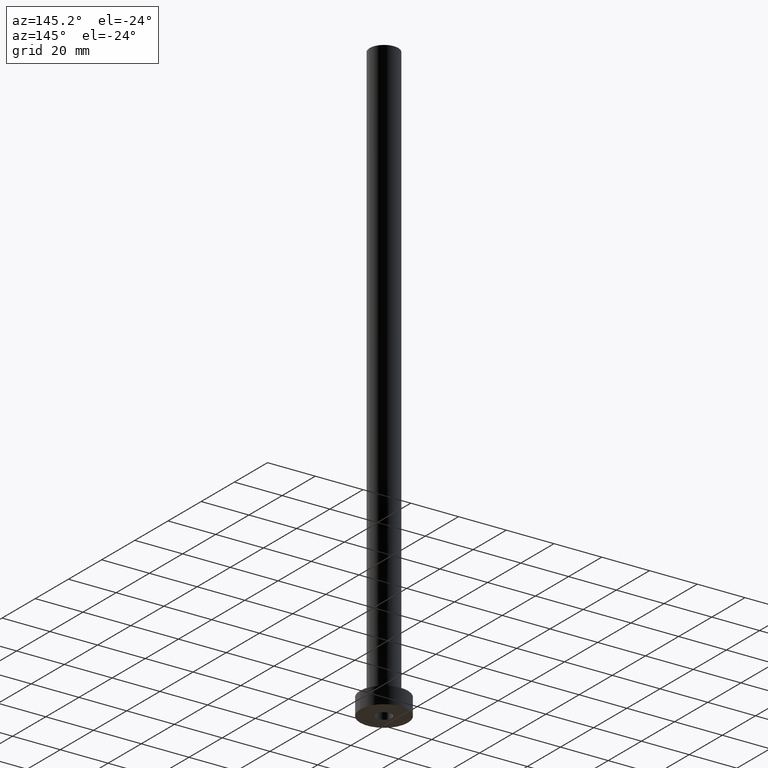
[diagram: clean part render]
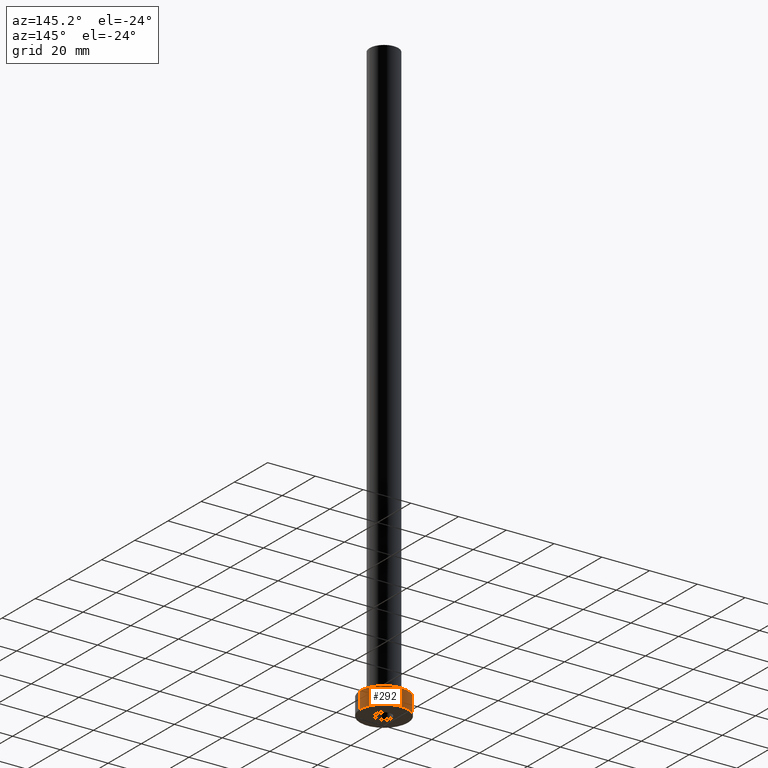
[diagram: same view with one face highlighted and labeled with its STEP entity id]
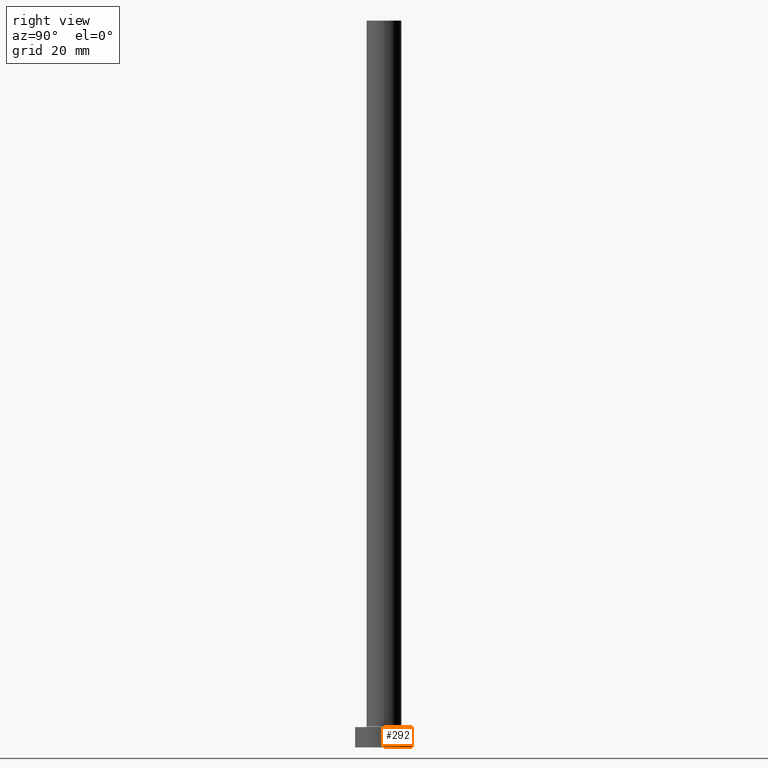
[diagram: same view with one face highlighted and labeled with its STEP entity id]
A machine part, auxiliary view. The second image highlights one B-rep face of the part: STEP entity #292.
A second angle (right view) of the same face is appended — the face is thin or edge-on in the first view.
In plain terms, the highlighted cylindrical surface (edge-blend (fillet) strip) has radius 10 mm, axis along (-0, -0, -1).
Its self-contained STEP definition (entity closure, byte-faithful):
#8 = CARTESIAN_POINT ( 'NONE',  ( -10.00000000000000000, 0.000000000000000000, 0.000000000000000000 ) ) ;
#19 = CARTESIAN_POINT ( 'NONE',  ( -10.00000000000000000, 0.000000000000000000, 7.000000000000000000 ) ) ;
#35 = CARTESIAN_POINT ( 'NONE',  ( 0.000000000000000000, 0.000000000000000000, 0.000000000000000000 ) ) ;
#44 = DIRECTION ( 'NONE',  ( -0.000000000000000000, -0.000000000000000000, -1.000000000000000000 ) ) ;
#67 = EDGE_LOOP ( 'NONE', ( #178, #98, #455, #127 ) ) ;
#79 = DIRECTION ( 'NONE',  ( -0.000000000000000000, -0.000000000000000000, -1.000000000000000000 ) ) ;
#98 = ORIENTED_EDGE ( 'NONE', *, *, #195, .T. ) ;
#107 = FACE_OUTER_BOUND ( 'NONE', #67, .T. ) ;
#111 = DIRECTION ( 'NONE',  ( 1.000000000000000000, 0.000000000000000000, 0.000000000000000000 ) ) ;
#122 = DIRECTION ( 'NONE',  ( 0.000000000000000000, 0.000000000000000000, 1.000000000000000000 ) ) ;
#127 = ORIENTED_EDGE ( 'NONE', *, *, #153, .F. ) ;
#143 = LINE ( 'NONE', #244, #375 ) ;
#145 = CYLINDRICAL_SURFACE ( 'NONE', #253, 10.00000000000000000 ) ;
#153 = EDGE_CURVE ( 'NONE', #459, #309, #143, .T. ) ;
#163 = CARTESIAN_POINT ( 'NONE',  ( 10.00000000000000000, 1.224646799147353256E-15, 0.000000000000000000 ) ) ;
#164 = DIRECTION ( 'NONE',  ( 1.000000000000000000, 0.000000000000000000, 0.000000000000000000 ) ) ;
#178 = ORIENTED_EDGE ( 'NONE', *, *, #241, .F. ) ;
#192 = EDGE_CURVE ( 'NONE', #460, #309, #432, .T. ) ;
#195 = EDGE_CURVE ( 'NONE', #271, #460, #357, .T. ) ;
#213 = CIRCLE ( 'NONE', #230, 10.00000000000000000 ) ;
#230 = AXIS2_PLACEMENT_3D ( 'NONE', #418, #122, #164 ) ;
#241 = EDGE_CURVE ( 'NONE', #271, #459, #213, .T. ) ;
#244 = CARTESIAN_POINT ( 'NONE',  ( -10.00000000000000000, 0.000000000000000000, 7.000000000000000000 ) ) ;
#253 = AXIS2_PLACEMENT_3D ( 'NONE', #283, #365, #316 ) ;
#268 = VECTOR ( 'NONE', #79, 1000.000000000000000 ) ;
#271 = VERTEX_POINT ( 'NONE', #390 ) ;
#283 = CARTESIAN_POINT ( 'NONE',  ( 0.000000000000000000, 0.000000000000000000, 7.000000000000000000 ) ) ;
#285 = DIRECTION ( 'NONE',  ( 0.000000000000000000, 0.000000000000000000, 1.000000000000000000 ) ) ;
#288 = AXIS2_PLACEMENT_3D ( 'NONE', #35, #285, #111 ) ;
#292 = ADVANCED_FACE ( 'NONE', ( #107 ), #145, .T. ) ;
#309 = VERTEX_POINT ( 'NONE', #8 ) ;
#316 = DIRECTION ( 'NONE',  ( -1.000000000000000000, 0.000000000000000000, 0.000000000000000000 ) ) ;
#357 = LINE ( 'NONE', #400, #268 ) ;
#365 = DIRECTION ( 'NONE',  ( -0.000000000000000000, -0.000000000000000000, -1.000000000000000000 ) ) ;
#375 = VECTOR ( 'NONE', #44, 1000.000000000000000 ) ;
#390 = CARTESIAN_POINT ( 'NONE',  ( 10.00000000000000000, 1.224646799147353256E-15, 7.000000000000000000 ) ) ;
#400 = CARTESIAN_POINT ( 'NONE',  ( 10.00000000000000000, 1.224646799147353256E-15, 7.000000000000000000 ) ) ;
#418 = CARTESIAN_POINT ( 'NONE',  ( 0.000000000000000000, 0.000000000000000000, 7.000000000000000000 ) ) ;
#432 = CIRCLE ( 'NONE', #288, 10.00000000000000000 ) ;
#455 = ORIENTED_EDGE ( 'NONE', *, *, #192, .T. ) ;
#459 = VERTEX_POINT ( 'NONE', #19 ) ;
#460 = VERTEX_POINT ( 'NONE', #163 ) ;